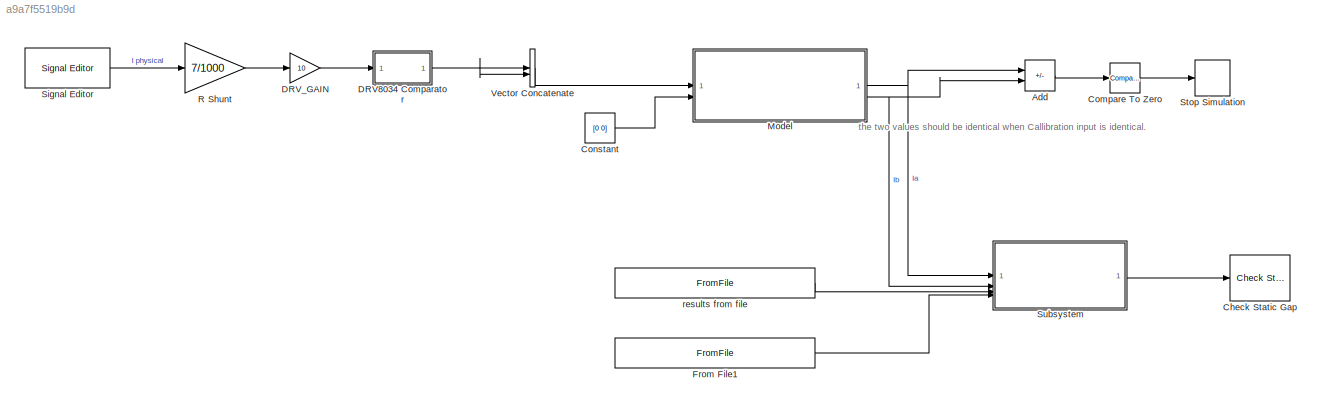
MODEL slx_a9a7f5519b9d
KIND model
CONFIG AbsTol = auto
CONFIG EnableMultiTasking = off
CONFIG FixedStep = 5e-05
CONFIG MaxStep = auto
CONFIG MinStep = auto
CONFIG RelTol = 1e-3
CONFIG SampleTimeConstraint = Unconstrained
CONFIG SolverName = FixedStepDiscrete
CONFIG StartTime = 0.0
CONFIG StopTime = 10.0
BLOCK [Sum] Add
  IconShape = rectangular
  Inputs = +-
BLOCK [Reference] Check Static Gap  REF=simulink/Model
Verification/Check 
Static Gap
  Description = u <= -0.1 || 0 <= u
  SourceBlock = simulink/Model\nVerification/Check \nStatic Gap
  SourceType = Checks_SGap
BLOCK [Reference] Compare To Zero  REF=simulink/Logic and Bit
Operations/Compare
To Zero
  SourceBlock = simulink/Logic and Bit\nOperations/Compare\nTo Zero
  SourceType = Compare To Zero
BLOCK [Constant] Constant
  OutDataTypeStr = int16
  Value = [0 0]
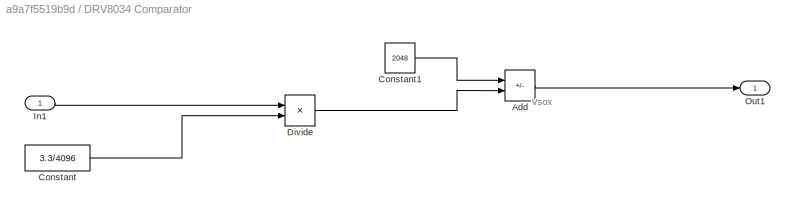
BLOCK [SubSystem] DRV8034 Comparator
BLOCK [Sum] DRV8034 Comparator/Add
  IconShape = rectangular
  Inputs = +-
  OutDataTypeStr = uint16
  SaturateOnIntegerOverflow = on
BLOCK [Constant] DRV8034 Comparator/Constant
  Value = 3.3/4096
BLOCK [Constant] DRV8034 Comparator/Constant1
  OutDataTypeStr = uint16
  Value = 2048
BLOCK [Product] DRV8034 Comparator/Divide
  Inputs = */
  OutDataTypeStr = int16
BLOCK [Inport] DRV8034 Comparator/In1
BLOCK [Outport] DRV8034 Comparator/Out1
BLOCK [Gain] DRV_GAIN
  Gain = 10
BLOCK [FromFile] From File1
  FileName = validation_results_ADCRawToIab_10_sec.mat
  SampleTime = 0
BLOCK [ModelReference] Model
  CachedPortDiscreteRates = [0.0002]
  ModelNameDialog = ADCRawToIab.slx
  ModelReferenceVersion = 7.2
BLOCK [Gain] R Shunt
  Gain = 7/1000
BLOCK [Reference] Signal Editor  REF=SignalEditorBlockLib/Signal Editor
  LibrarySourceBlock = simulink/Sources/Signal Editor
  SourceBlock = SignalEditorBlockLib/Signal Editor
  SourceType = SignalEditor
  UserDataPersistent = on
BLOCK [Stop] Stop Simulation
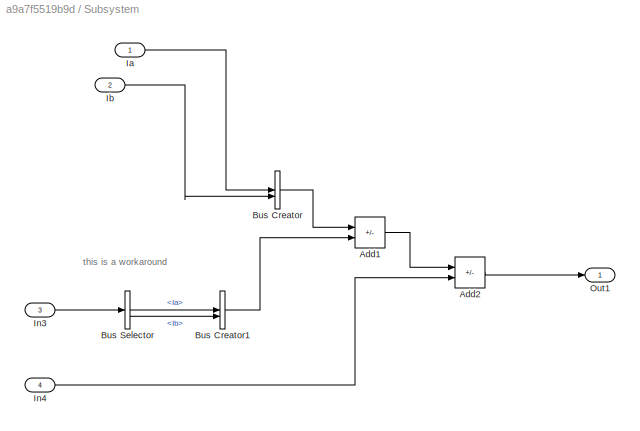
BLOCK [SubSystem] Subsystem
BLOCK [Sum] Subsystem/Add1
  IconShape = rectangular
  Inputs = +-
BLOCK [Sum] Subsystem/Add2
  IconShape = rectangular
  Inputs = +-
BLOCK [BusCreator] Subsystem/Bus Creator
  DisplayOption = bar
  InheritFromInputs = on
  Inputs = 2
  OutDataTypeStr = Bus: outputIaIb
BLOCK [BusCreator] Subsystem/Bus Creator1
  DisplayOption = bar
  InheritFromInputs = on
  Inputs = 2
BLOCK [BusSelector] Subsystem/Bus Selector
  OutputSignals = Ia,Ib
BLOCK [Inport] Subsystem/Ia
BLOCK [Inport] Subsystem/Ib
  Port = 2
BLOCK [Inport] Subsystem/In3
  Port = 3
BLOCK [Inport] Subsystem/In4
  Port = 4
BLOCK [Outport] Subsystem/Out1
BLOCK [Concatenate] Vector Concatenate
BLOCK [FromFile] results from file
  FileName = results_ADCRawToIab_sz1_10sec.mat
  OutDataTypeStr = Bus: outputIaIb
  SampleTime = 0
ANNOTATION (root): the two values should be identical when Callibration input is identical.
ANNOTATION DRV8034 Comparator: Vsox
ANNOTATION Subsystem: this is a workaround
LINE Add:1 -> Compare To Zero:1
LINE Compare To Zero:1 -> Stop Simulation:1
LINE Constant:1 -> Model:2
LINE DRV8034 Comparator/Add:1 -> DRV8034 Comparator/Out1:1
LINE DRV8034 Comparator/Constant1:1 -> DRV8034 Comparator/Add:1
LINE DRV8034 Comparator/Constant:1 -> DRV8034 Comparator/Divide:2
LINE DRV8034 Comparator/Divide:1 -> DRV8034 Comparator/Add:2
LINE DRV8034 Comparator/In1:1 -> DRV8034 Comparator/Divide:1
NET DRV8034 Comparator:1 -> Vector Concatenate:1, Vector Concatenate:2
LINE DRV_GAIN:1 -> DRV8034 Comparator:1
LINE From File1:1 -> Subsystem:4
NET Model:1 -> Add:1, Subsystem:1
NET Model:2 -> Add:2, Subsystem:2
LINE R Shunt:1 -> DRV_GAIN:1
LINE Signal Editor:1 -> R Shunt:1
LINE Subsystem/Add1:1 -> Subsystem/Add2:1
LINE Subsystem/Add2:1 -> Subsystem/Out1:1
LINE Subsystem/Bus Creator1:1 -> Subsystem/Add1:2
LINE Subsystem/Bus Creator:1 -> Subsystem/Add1:1
LINE Subsystem/Bus Selector:1 -> Subsystem/Bus Creator1:1
LINE Subsystem/Bus Selector:2 -> Subsystem/Bus Creator1:2
LINE Subsystem/Ia:1 -> Subsystem/Bus Creator:1
LINE Subsystem/Ib:1 -> Subsystem/Bus Creator:2
LINE Subsystem/In3:1 -> Subsystem/Bus Selector:1
LINE Subsystem/In4:1 -> Subsystem/Add2:2
LINE Subsystem:1 -> Check Static Gap:1
LINE Vector Concatenate:1 -> Model:1
LINE results from file:1 -> Subsystem:3
note: NET lines group one-source signal fan-out (src -> all destinations, sorted); 1:1 wires keep LINE
